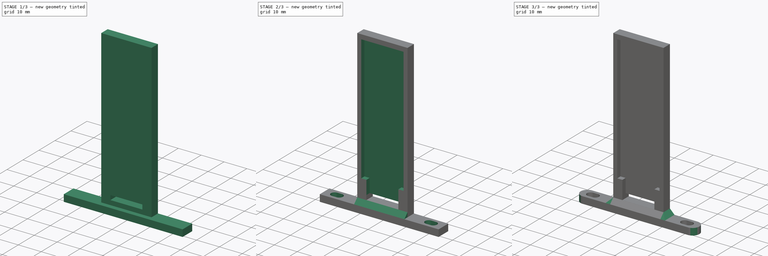
[diagram: build sequence overview — one tinted view per stage of 3, left to right]
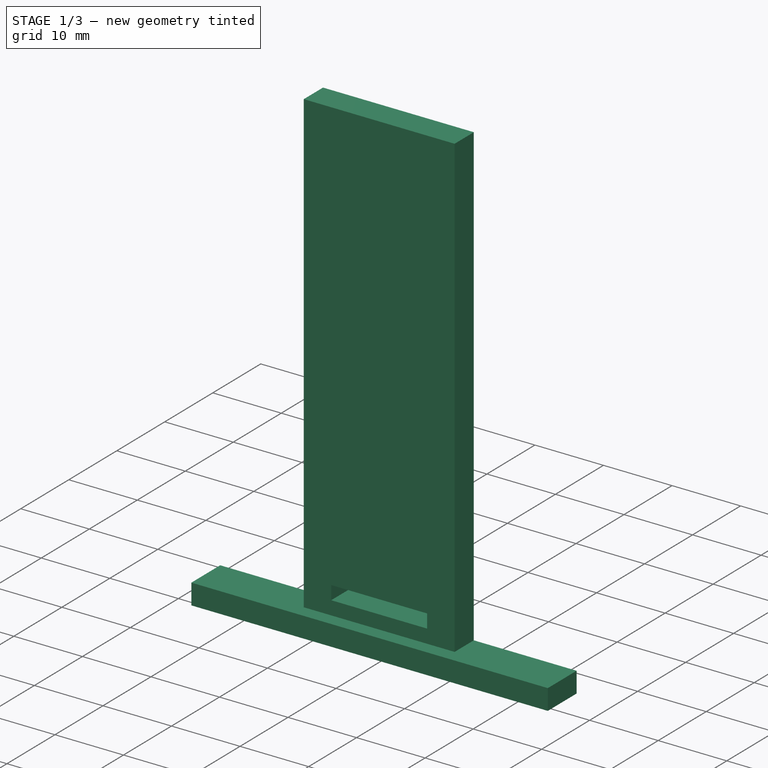
[diagram: stage 1 of 3 — iso view after this stage's code; geometry added in this stage tinted green]
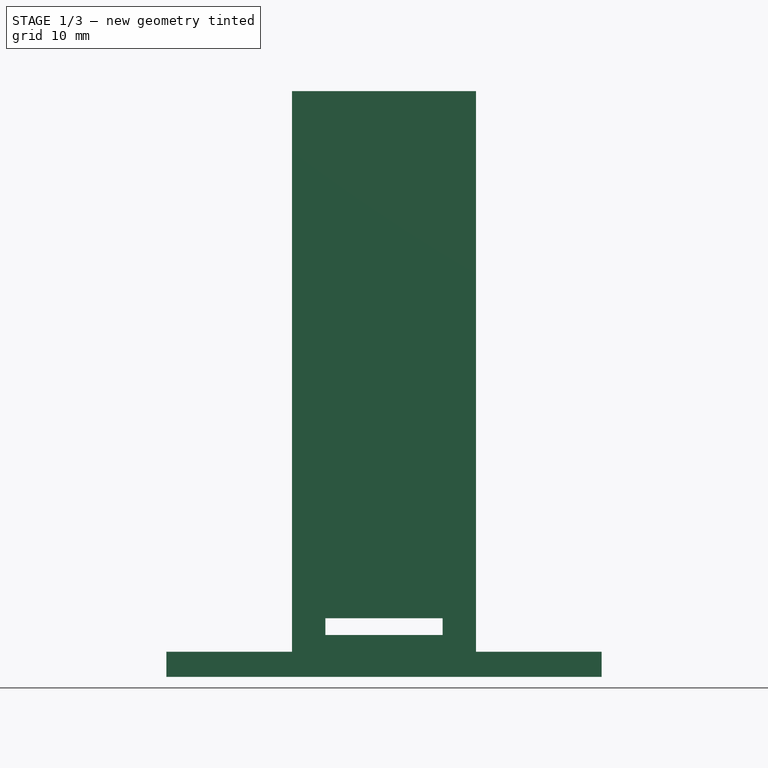
[diagram: stage 1 of 3 — front view after this stage's code; geometry added in this stage tinted green]
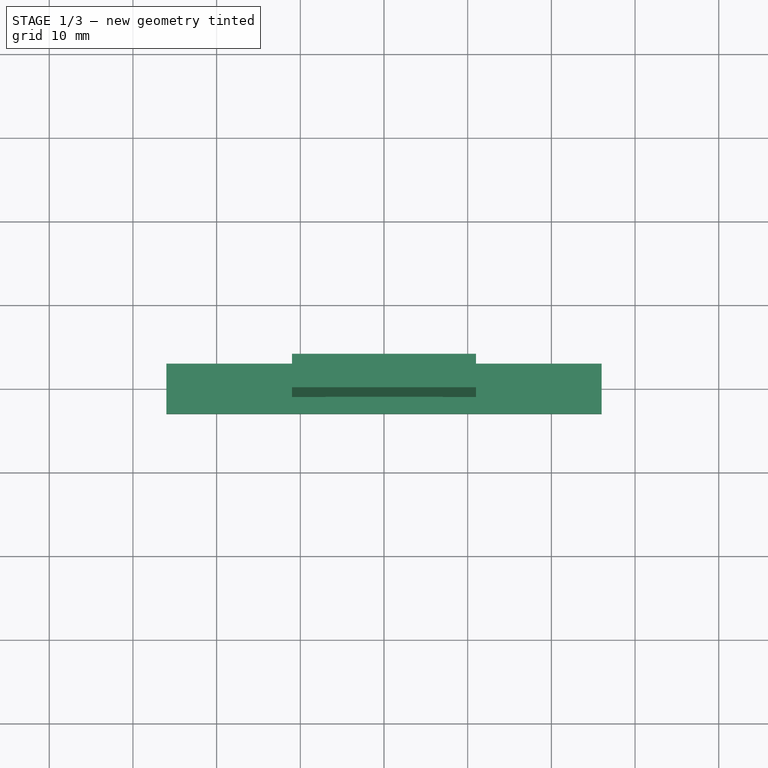
[diagram: stage 1 of 3 — top view after this stage's code; geometry added in this stage tinted green]
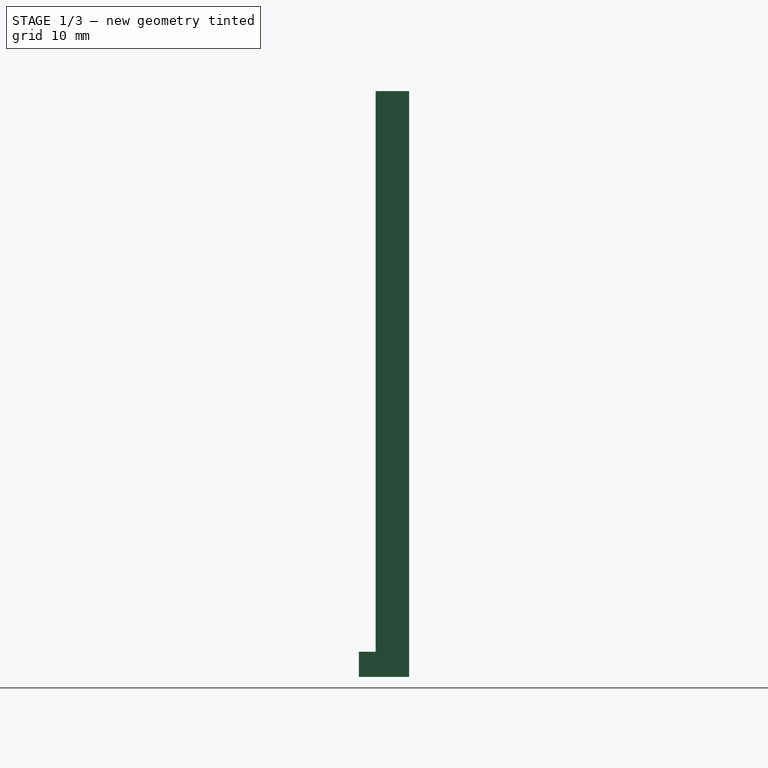
[diagram: stage 1 of 3 — right view after this stage's code; geometry added in this stage tinted green]
FCSTD DOCUMENT  (FreeCAD 0.18.4R)
Label: spacer_tower_camera
License: All rights reserved
LicenseURL: http://en.wikipedia.org/wiki/All_rights_reserved
objects: Sketcher::SketchObject×4, PartDesign::Pocket×3, PartDesign::Chamfer×2, PartDesign::Pad×1, PartDesign::Fillet×1, PartDesign::Body×1
note: 16 computed .brp shape members not serialized (recipe doc carries the construction recipe); baked Part::Feature solids carry a one-line shape summary decoded from their .brp

FEATURE [Sketcher::SketchObject] Sketch
  MapMode = 5
  Placement = pos=(0,0,0) rot=(1,0,0;1.5708rad)
  Support = -> [XZ_Plane]
  sketch-geometry (12):
    g0: LineSegment StartX=-26 StartY=0 StartZ=0 EndX=-26 EndY=3 EndZ=0
    g1: LineSegment StartX=-26 StartY=3 StartZ=0 EndX=-11 EndY=3 EndZ=0
    g2: LineSegment StartX=-11 StartY=3 StartZ=0 EndX=-11 EndY=70 EndZ=0
    g3: LineSegment StartX=-11 StartY=70 StartZ=0 EndX=11 EndY=70 EndZ=0
    g4: LineSegment StartX=11 StartY=70 StartZ=0 EndX=11 EndY=3 EndZ=0
    g5: LineSegment StartX=11 StartY=3 StartZ=0 EndX=26 EndY=3 EndZ=0
    g6: LineSegment StartX=26 StartY=3 StartZ=0 EndX=26 EndY=0 EndZ=0
    g7: LineSegment StartX=26 StartY=0 StartZ=0 EndX=-26 EndY=0 EndZ=0
    g8: LineSegment StartX=-7 StartY=7 StartZ=0 EndX=7 EndY=7 EndZ=0
    g9: LineSegment StartX=7 StartY=7 StartZ=0 EndX=7 EndY=5 EndZ=0
    g10: LineSegment StartX=7 StartY=5 StartZ=0 EndX=-7 EndY=5 EndZ=0
    g11: LineSegment StartX=-7 StartY=5 StartZ=0 EndX=-7 EndY=7 EndZ=0
  constraints (34):
    c: PointOnObject(g0,g-1)
    c: Vertical(g0)
    c: Coincident(g0,g1)
    c: Horizontal(g1)
    c: Coincident(g1,g2)
    c: Vertical(g2)
    c: Coincident(g2,g3)
    c: Horizontal(g3)
    c: Coincident(g3,g4)
    c: Vertical(g4)
    c: Coincident(g4,g5)
    c: Horizontal(g5)
    c: Coincident(g5,g6)
    c: Vertical(g6)
    c: Coincident(g6,g7)
    c: Coincident(g7,g0)
    c: Symmetric(g0,g6,g-2)
    c: Equal(g1,g5)
    c: Equal(g2,g4)
    c: DistanceX(g7,g7) = 52
    c: DistanceX(g3,g3) = 22
    c: DistanceY(g6,g6) = 3
    c: DistanceY(g3) = 70
    c: Coincident(g8,g9)
    c: Coincident(g9,g10)
    c: Coincident(g10,g11)
    c: Coincident(g11,g8)
    c: Horizontal(g8)
    c: Vertical(g9)
    c: Vertical(g11)
    c: DistanceX(g8,g8) = 14
    c: DistanceY(g9,g9) = 2
    c: Symmetric(g10,g9,g-2)
    c: DistanceY(g9) = 5
FEATURE [PartDesign::Pad] Pad
  Length = 6
  Length2 = 100
  Midplane = true
  Placement = pos=(0,0,0) rot=(1,0,0;1.5708rad)
  Profile = -> Sketch
  Type = 0
FEATURE [Sketcher::SketchObject] Sketch001
  MapMode = 5
  Placement = pos=(0,-3,0) rot=(1,0,0;1.5708rad)
  Support = -> [Pad]
  sketch-geometry (4):
    g0: LineSegment StartX=-11 StartY=73 StartZ=0 EndX=11 EndY=73 EndZ=0
    g1: LineSegment StartX=11 StartY=73 StartZ=0 EndX=11 EndY=3 EndZ=0
    g2: LineSegment StartX=11 StartY=3 StartZ=0 EndX=-11 EndY=3 EndZ=0
    g3: LineSegment StartX=-11 StartY=3 StartZ=0 EndX=-11 EndY=73 EndZ=0
  constraints (11):
    c: Coincident(g0,g1)
    c: Coincident(g1,g2)
    c: Coincident(g2,g3)
    c: Coincident(g3,g0)
    c: Horizontal(g0)
    c: Vertical(g1)
    c: Vertical(g3)
    c: Symmetric(g1,g2,g-2)
    c: DistanceX(g2,g2) = 22
    c: DistanceY(g1) = 3
    c: DistanceY(g1,g1) = 70
FEATURE [PartDesign::Pocket] Pocket
  BaseFeature = -> Pad
  Length = 2
  Length2 = 100
  Placement = pos=(0,0,0) rot=(1,0,0;1.5708rad)
  Profile = -> Sketch001
  Type = 0
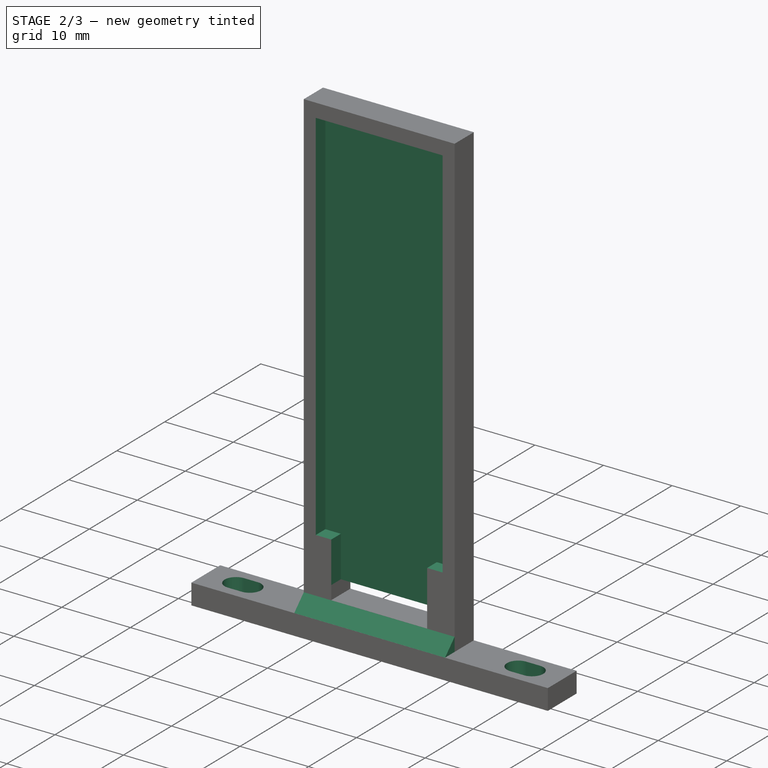
[diagram: stage 2 of 3 — iso view after this stage's code; geometry added in this stage tinted green]
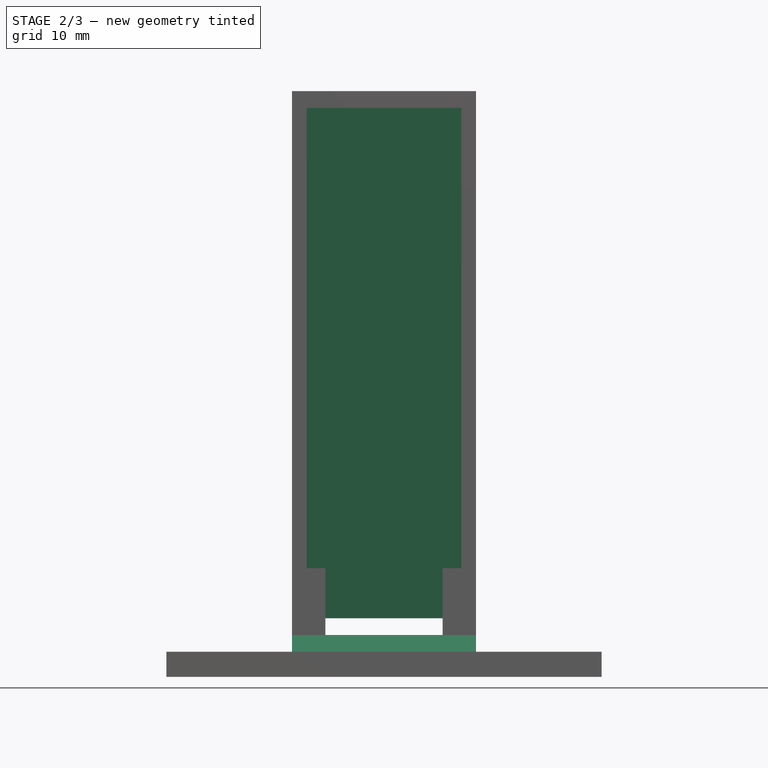
[diagram: stage 2 of 3 — front view after this stage's code; geometry added in this stage tinted green]
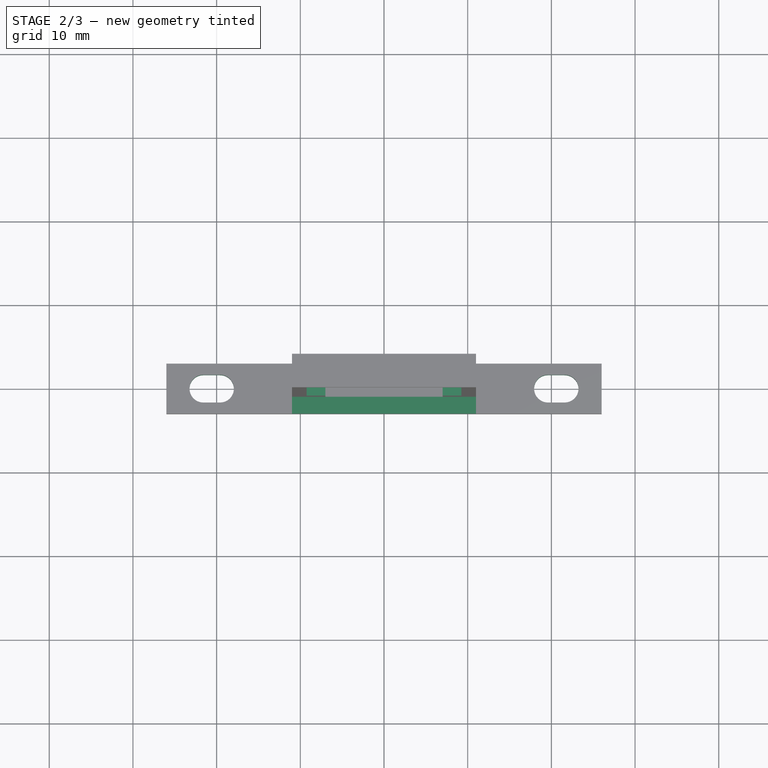
[diagram: stage 2 of 3 — top view after this stage's code; geometry added in this stage tinted green]
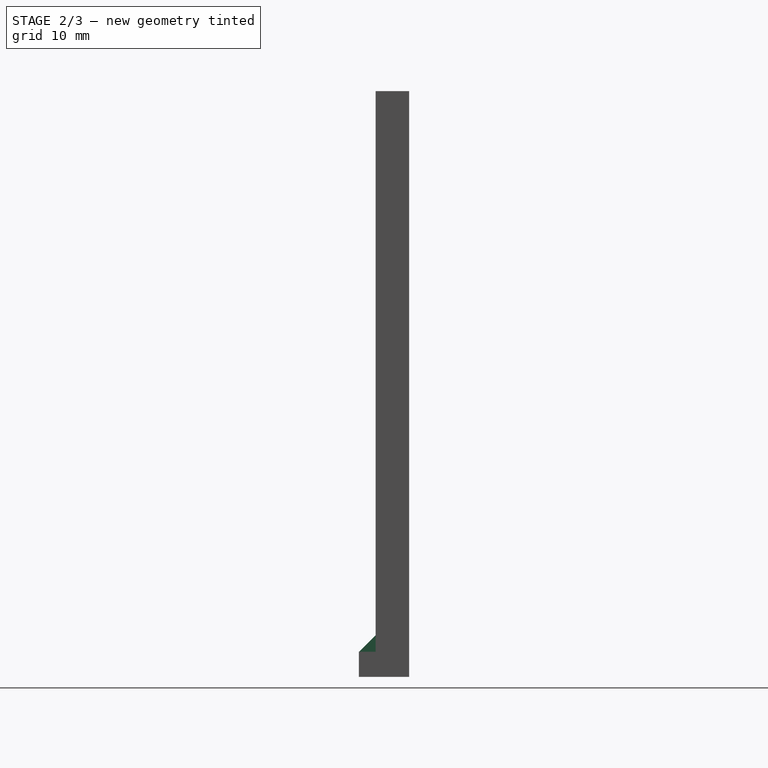
[diagram: stage 2 of 3 — right view after this stage's code; geometry added in this stage tinted green]
FEATURE [Sketcher::SketchObject] Sketch002
  MapMode = 5
  Placement = pos=(0,-1,0) rot=(1,0,0;1.5708rad)
  Support = -> [Pocket]
  sketch-geometry (8):
    g0: LineSegment StartX=-9.25 StartY=68 StartZ=0 EndX=9.25 EndY=68 EndZ=0
    g1: LineSegment StartX=9.25 StartY=68 StartZ=0 EndX=9.25 EndY=13 EndZ=0
    g2: LineSegment StartX=9.25 StartY=13 StartZ=0 EndX=7 EndY=13 EndZ=0
    g3: LineSegment StartX=-9.25 StartY=13 StartZ=0 EndX=-9.25 EndY=68 EndZ=0
    g4: LineSegment StartX=7 StartY=13 StartZ=0 EndX=7 EndY=7 EndZ=0
    g5: LineSegment StartX=7 StartY=7 StartZ=0 EndX=-7 EndY=7 EndZ=0
    g6: LineSegment StartX=-7 StartY=7 StartZ=0 EndX=-7 EndY=13 EndZ=0
    g7: LineSegment StartX=-7 StartY=13 StartZ=0 EndX=-9.25 EndY=13 EndZ=0
  constraints (22):
    c: Coincident(g0,g1)
    c: Coincident(g1,g2)
    c: Coincident(g7,g3)
    c: Coincident(g3,g0)
    c: Horizontal(g0)
    c: Vertical(g1)
    c: Vertical(g3)
    c: Symmetric(g7,g1,g-2)
    c: DistanceX(g7,g2) = 18.5
    c: DistanceY(g1) = 13
    c: DistanceY(g1,g1) = 55
    c: Coincident(g4,g5)
    c: Coincident(g5,g6)
    c: Horizontal(g5)
    c: Vertical(g4)
    c: Vertical(g6)
    c: Tangent(g2,g7)
    c: Equal(g7,g2)
    c: Coincident(g2,g4)
    c: Coincident(g6,g7)
    c: DistanceX(g5,g5) = 14
    c: DistanceY(g4,g4) = 6
FEATURE [PartDesign::Pocket] Pocket001
  BaseFeature = -> Pocket
  Length = 2
  Length2 = 100
  Placement = pos=(0,0,0) rot=(1,0,0;1.5708rad)
  Profile = -> Sketch002
  Type = 0
FEATURE [Sketcher::SketchObject] Sketch003
  MapMode = 5
  Placement = pos=(0,7e-16,3) rot=(0,0,1;3.14159rad)
  Support = -> [Pocket001]
  sketch-geometry (8):
    g0: ArcOfCircle CenterX=-19.59 CenterY=0 CenterZ=0 NormalX=0 NormalY=0 NormalZ=1 AngleXU=0 Radius=1.65 StartAngle=4.71239 EndAngle=7.85398
    g1: ArcOfCircle CenterX=-21.59 CenterY=1e-16 CenterZ=0 NormalX=0 NormalY=0 NormalZ=1 AngleXU=0 Radius=1.65 StartAngle=1.5708 EndAngle=4.71239
    g2: LineSegment StartX=-19.59 StartY=1.65 StartZ=0 EndX=-21.59 EndY=1.65 EndZ=0
    g3: LineSegment StartX=-19.59 StartY=-1.65 StartZ=0 EndX=-21.59 EndY=-1.65 EndZ=0
    g4: ArcOfCircle CenterX=19.59 CenterY=0 CenterZ=0 NormalX=0 NormalY=0 NormalZ=1 AngleXU=0 Radius=1.65 StartAngle=1.5708 EndAngle=4.71239
    g5: ArcOfCircle CenterX=21.59 CenterY=-1e-16 CenterZ=0 NormalX=0 NormalY=0 NormalZ=1 AngleXU=0 Radius=1.65 StartAngle=4.71239 EndAngle=7.85398
    g6: LineSegment StartX=19.59 StartY=-1.65 StartZ=0 EndX=21.59 EndY=-1.65 EndZ=0
    g7: LineSegment StartX=19.59 StartY=1.65 StartZ=0 EndX=21.59 EndY=1.65 EndZ=0
  constraints (19):
    c: Tangent(g0,g3) = 1.5708
    c: Tangent(g0,g2) = -1.5708
    c: Tangent(g2,g1) = -1.5708
    c: Tangent(g3,g1) = 1.5708
    c: Horizontal(g2)
    c: Equal(g0,g1)
    c: PointOnObject(g0,g-1)
    c: Tangent(g4,g7) = 1.5708
    c: Tangent(g4,g6) = -1.5708
    c: Tangent(g6,g5) = -1.5708
    c: Tangent(g7,g5) = 1.5708
    c: Horizontal(g6)
    c: Equal(g4,g5)
    c: Equal(g0,g4)
    c: Radius(g0) = 1.65
    c: DistanceX(g3,g3) = 2
    c: Equal(g3,g6)
    c: Symmetric(g4,g0,g-2)
    c: DistanceX(g0,g4) = 39.18
FEATURE [PartDesign::Pocket] Pocket002
  BaseFeature = -> Pocket001
  Length = 5
  Length2 = 100
  Placement = pos=(0,0,0) rot=(1,0,0;1.5708rad)
  Profile = -> Sketch003
  Type = 1
FEATURE [PartDesign::Chamfer] Chamfer
  Base = -> Pocket002 [Edge52]
  BaseFeature = -> Pocket002
  Placement = pos=(0,0,0) rot=(1,0,0;1.5708rad)
  Size = 1.99
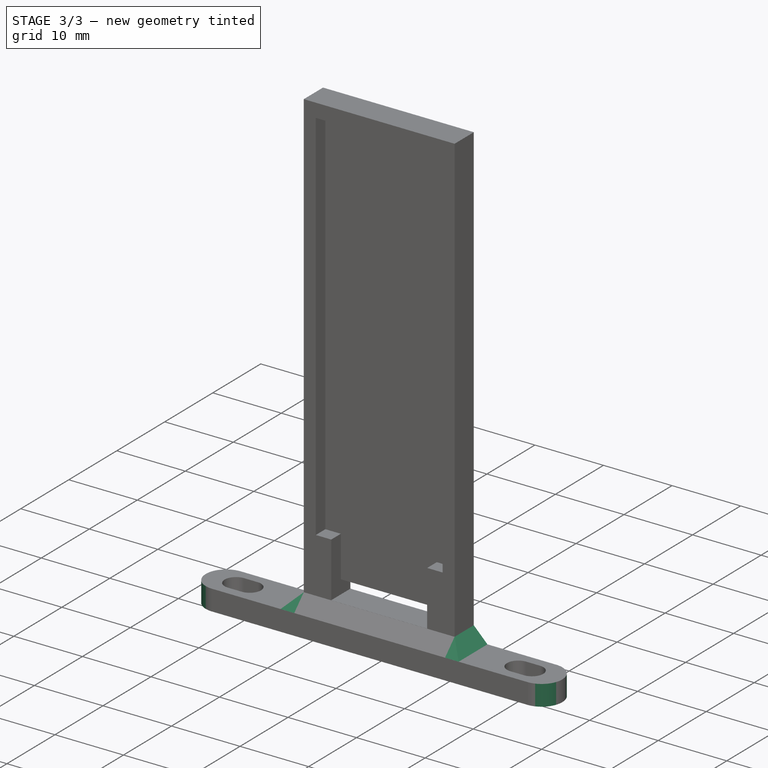
[diagram: stage 3 of 3 — iso view after this stage's code; geometry added in this stage tinted green]
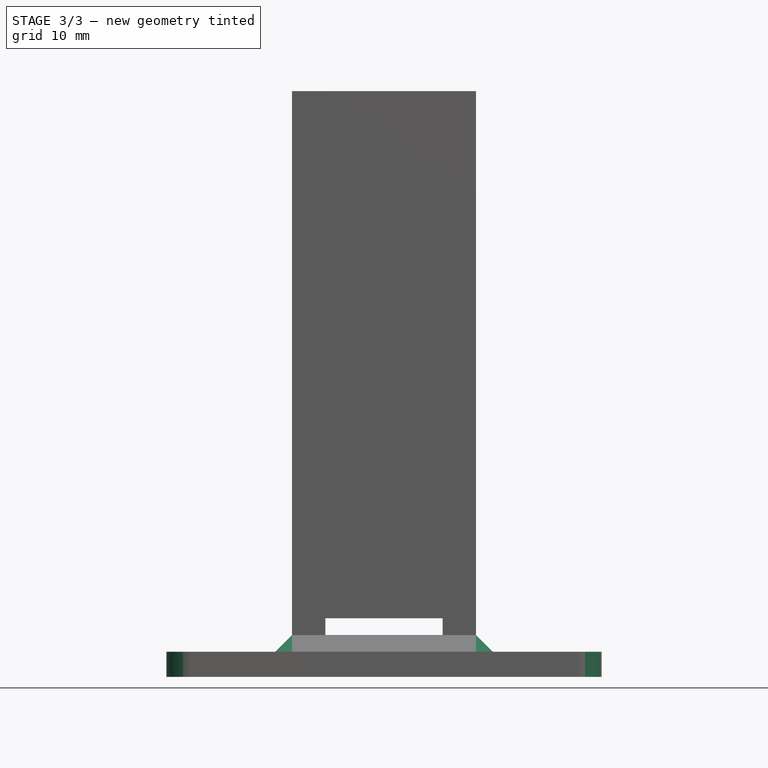
[diagram: stage 3 of 3 — front view after this stage's code; geometry added in this stage tinted green]
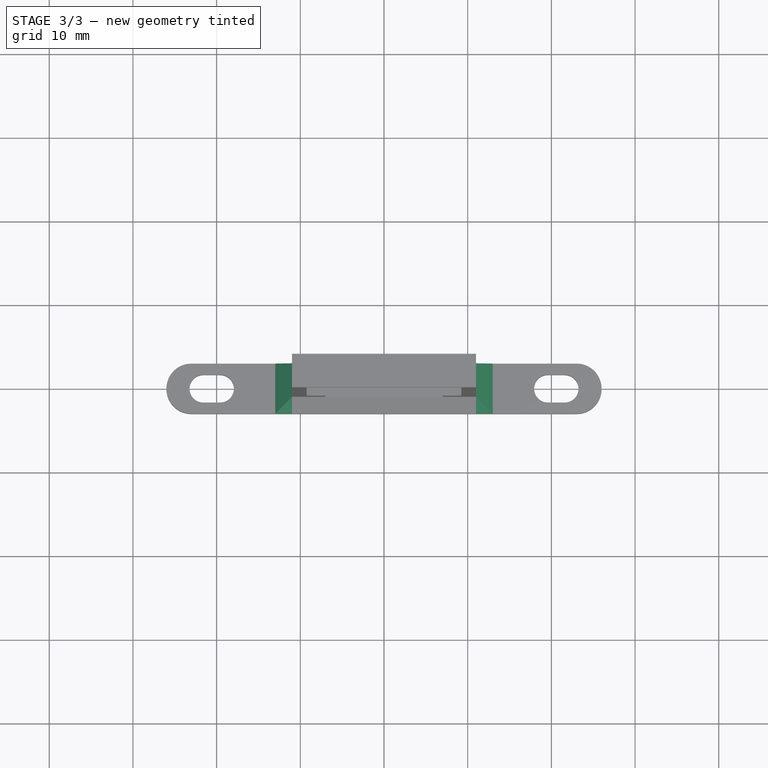
[diagram: stage 3 of 3 — top view after this stage's code; geometry added in this stage tinted green]
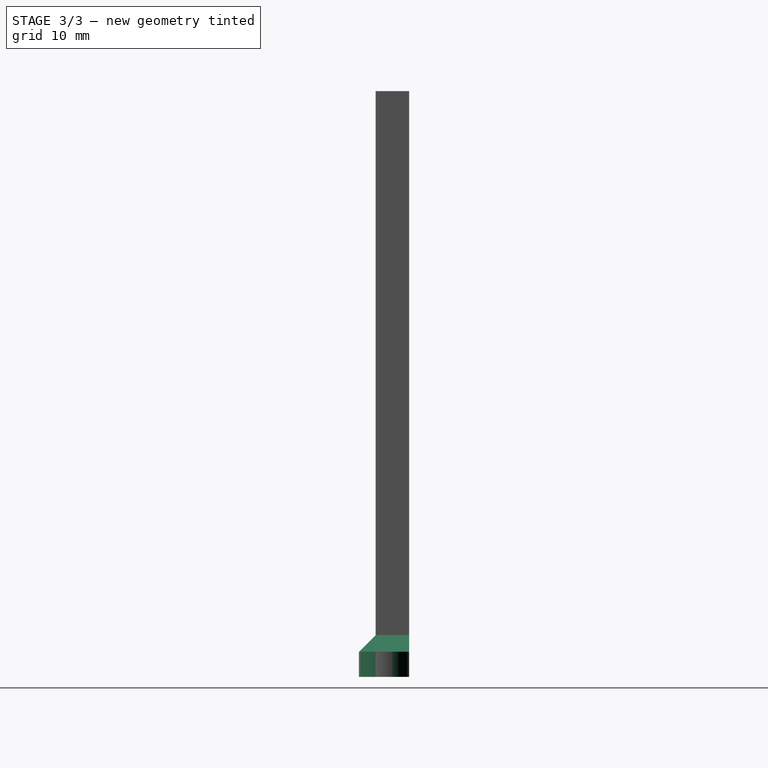
[diagram: stage 3 of 3 — right view after this stage's code; geometry added in this stage tinted green]
FEATURE [PartDesign::Chamfer] Chamfer001
  Base = -> Chamfer [Edge4,Edge44]
  BaseFeature = -> Chamfer
  Placement = pos=(0,0,0) rot=(1,0,0;1.5708rad)
  Size = 1.99
FEATURE [PartDesign::Fillet] Fillet
  Base = -> Chamfer001 [Edge7,Edge44,Edge56,Edge10]
  BaseFeature = -> Chamfer001
  Placement = pos=(0,0,0) rot=(1,0,0;1.5708rad)
  Radius = 2.99
FEATURE [PartDesign::Body] Body
  Group = -> [Sketch,Pad,Sketch001,Pocket,Sketch002,Pocket001,Sketch003,Pocket002,Chamfer,Chamfer001,Fillet]
  Origin = -> Origin
  Tip = -> Fillet
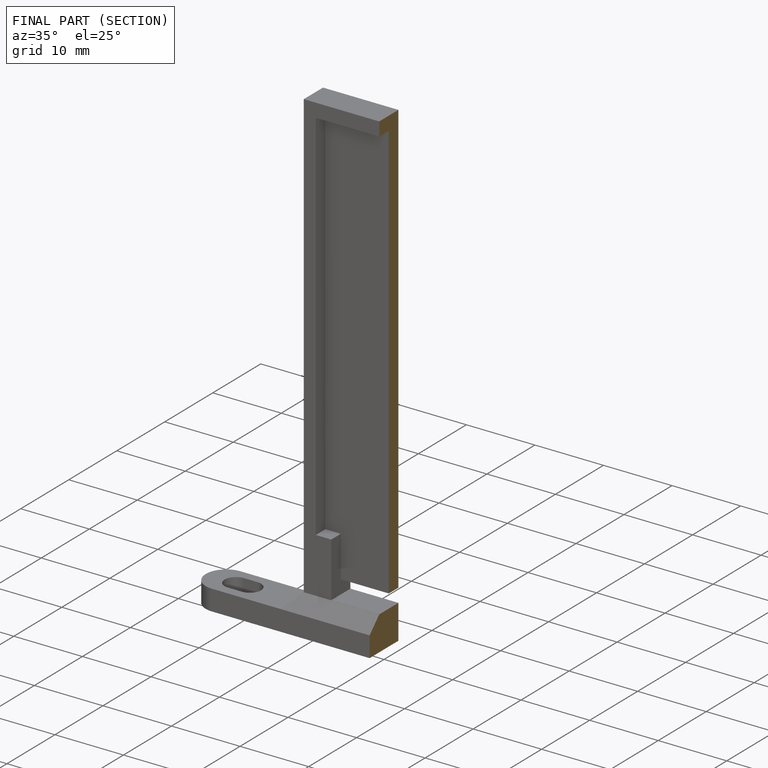
[diagram: finished part — half-section view (interior)]
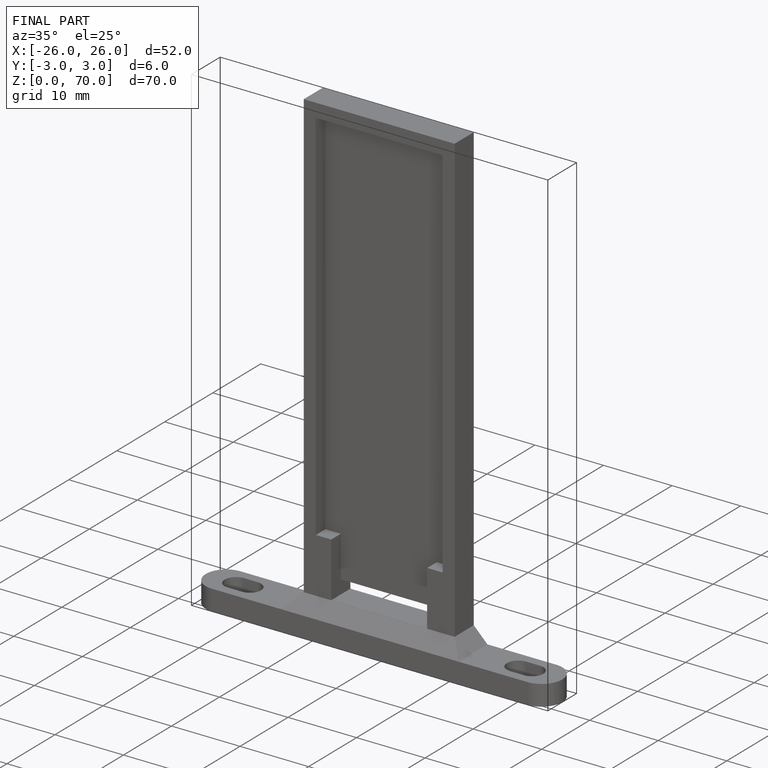
[diagram: finished part — iso view with bounding-box wireframe]
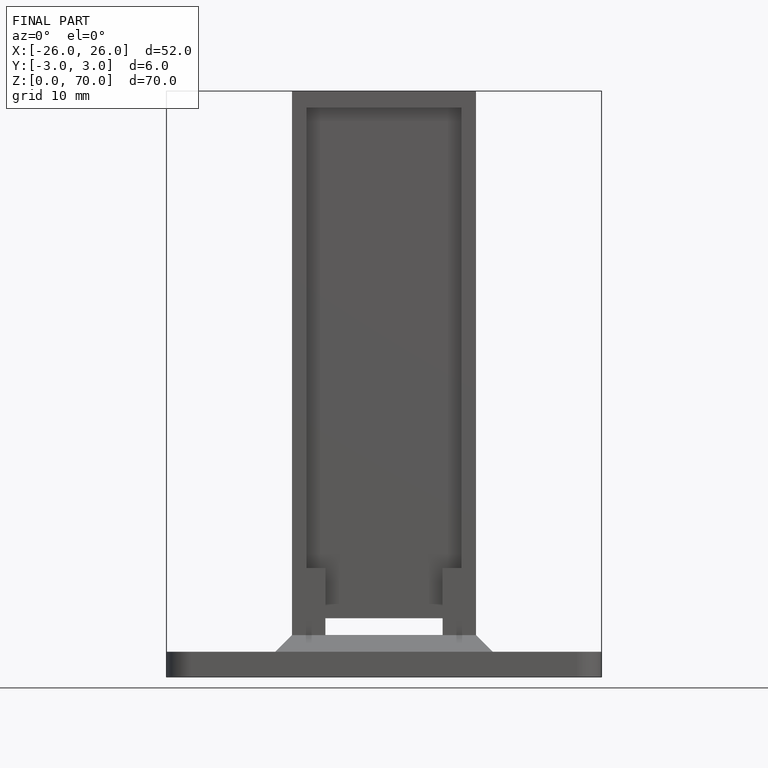
[diagram: finished part — front view with bounding-box wireframe]
